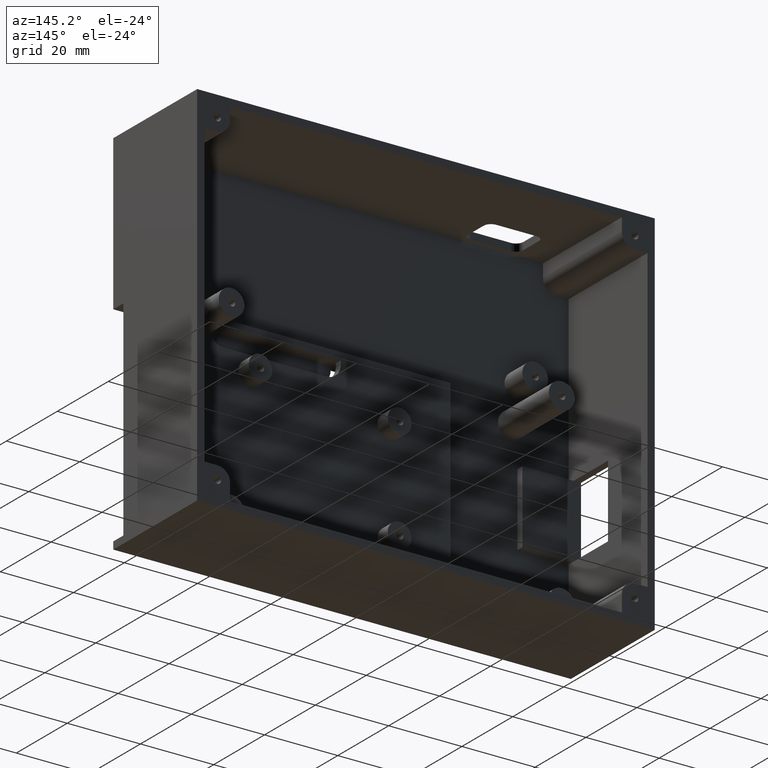
[diagram: clean part render]
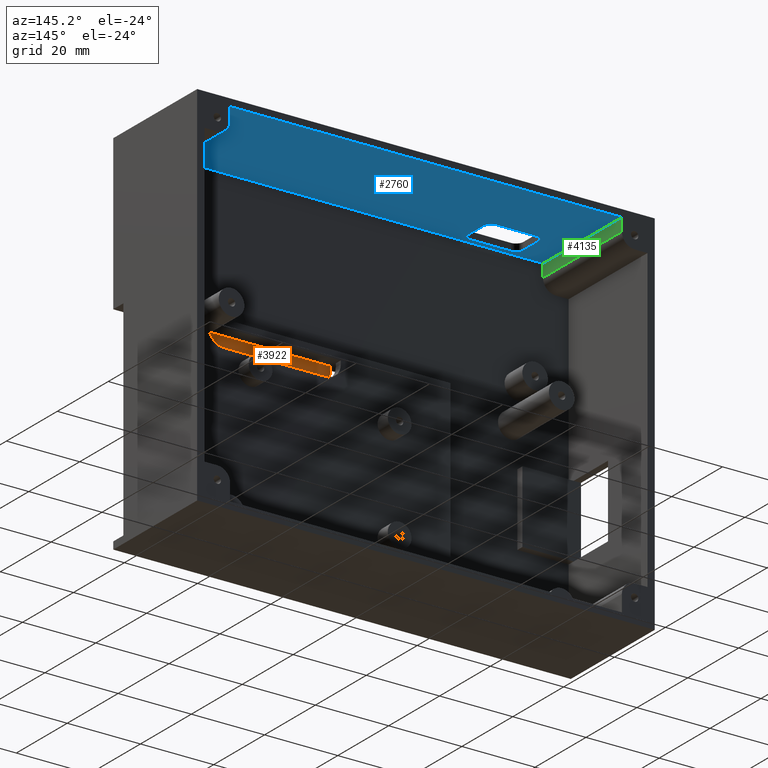
[diagram: same view with three faces highlighted in distinct colors, each labeled with its STEP entity id]
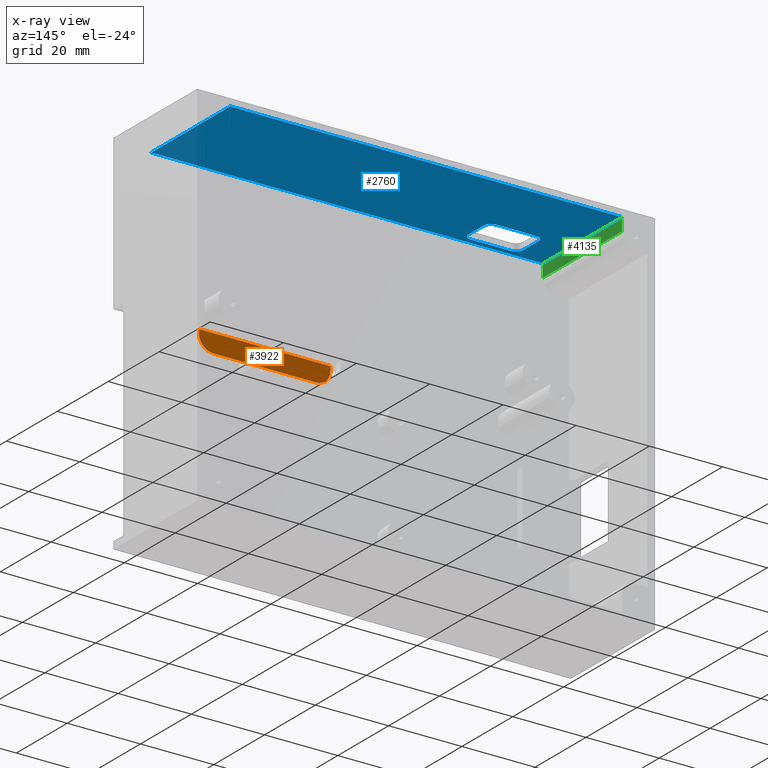
[diagram: x-ray of the same camera — body ghosted, the three highlighted faces saturated]
A machine part, auxiliary view with three faces highlighted in distinct colors.
The next image is the same camera in x-ray (body ghosted, the three faces saturated) — at least one of them is partly hidden behind the body in this view.
Their STEP definitions:

[orange] entity #3922 — the highlighted planar face has unit normal (0, 1, 0).
#4 = CARTESIAN_POINT ( 'NONE',  ( -14.97032640949552700, 2.000000000000000000, 14.74777448071218300 ) ) ;
#36 = VECTOR ( 'NONE', #3725, 1000.000000000000000 ) ;
#117 = CARTESIAN_POINT ( 'NONE',  ( 17.02967359050447300, 2.000000000000000000, 9.747774480712182700 ) ) ;
#363 = LINE ( 'NONE', #1131, #1828 ) ;
#457 = EDGE_CURVE ( 'NONE', #2579, #1004, #821, .T. ) ;
#489 = DIRECTION ( 'NONE',  ( -0.0000000000000000000, -1.000000000000000000, 0.0000000000000000000 ) ) ;
#491 = CIRCLE ( 'NONE', #1545, 4.000000000000001800 ) ;
#675 = VECTOR ( 'NONE', #930, 1000.000000000000000 ) ;
#821 = CIRCLE ( 'NONE', #2222, 3.999999999999998200 ) ;
#930 = DIRECTION ( 'NONE',  ( 1.000000000000000000, 0.0000000000000000000, 6.195440985631455300E-017 ) ) ;
#1003 = VERTEX_POINT ( 'NONE', #117 ) ;
#1004 = VERTEX_POINT ( 'NONE', #3218 ) ;
#1125 = ORIENTED_EDGE ( 'NONE', *, *, #4304, .T. ) ;
#1131 = CARTESIAN_POINT ( 'NONE',  ( -14.97032640949547600, 2.000000000000000000, -5.193875333117464500E-014 ) ) ;
#1182 = PLANE ( 'NONE',  #2083 ) ;
#1198 = DIRECTION ( 'NONE',  ( 0.0000000000000000000, -0.0000000000000000000, 1.000000000000000000 ) ) ;
#1486 = VECTOR ( 'NONE', #3456, 1000.000000000000000 ) ;
#1545 = AXIS2_PLACEMENT_3D ( 'NONE', #4172, #2104, #1744 ) ;
#1654 = ORIENTED_EDGE ( 'NONE', *, *, #2550, .F. ) ;
#1719 = ORIENTED_EDGE ( 'NONE', *, *, #4383, .T. ) ;
#1744 = DIRECTION ( 'NONE',  ( 0.0000000000000000000, 0.0000000000000000000, 1.000000000000000000 ) ) ;
#1828 = VECTOR ( 'NONE', #3531, 1000.000000000000000 ) ;
#1859 = CARTESIAN_POINT ( 'NONE',  ( -10.97032640949552400, 2.000000000000000000, 13.74777448071218100 ) ) ;
#1867 = LINE ( 'NONE', #2735, #36 ) ;
#2022 = EDGE_CURVE ( 'NONE', #1004, #1003, #4002, .T. ) ;
#2083 = AXIS2_PLACEMENT_3D ( 'NONE', #2927, #4287, #1198 ) ;
#2104 = DIRECTION ( 'NONE',  ( 0.0000000000000000000, 1.000000000000000000, -0.0000000000000000000 ) ) ;
#2222 = AXIS2_PLACEMENT_3D ( 'NONE', #1859, #489, #2888 ) ;
#2265 = FACE_OUTER_BOUND ( 'NONE', #3411, .T. ) ;
#2292 = CARTESIAN_POINT ( 'NONE',  ( -6.039176153649662000E-016, 2.000000000000000000, 9.747774480712180900 ) ) ;
#2550 = EDGE_CURVE ( 'NONE', #3726, #3831, #1867, .T. ) ;
#2579 = VERTEX_POINT ( 'NONE', #4075 ) ;
#2622 = VERTEX_POINT ( 'NONE', #4439 ) ;
#2735 = CARTESIAN_POINT ( 'NONE',  ( -42.97032640949553400, 2.000000000000000000, 14.74777448071218400 ) ) ;
#2820 = ORIENTED_EDGE ( 'NONE', *, *, #457, .F. ) ;
#2888 = DIRECTION ( 'NONE',  ( 0.0000000000000000000, 0.0000000000000000000, 1.000000000000000000 ) ) ;
#2927 = CARTESIAN_POINT ( 'NONE',  ( 0.0000000000000000000, 2.000000000000000000, 0.0000000000000000000 ) ) ;
#2937 = LINE ( 'NONE', #3800, #1486 ) ;
#2999 = CARTESIAN_POINT ( 'NONE',  ( 21.02967359050447300, 2.000000000000000000, 14.74777448071217900 ) ) ;
#3073 = ORIENTED_EDGE ( 'NONE', *, *, #3836, .F. ) ;
#3218 = CARTESIAN_POINT ( 'NONE',  ( -10.97032640949552400, 2.000000000000000000, 9.747774480712180900 ) ) ;
#3411 = EDGE_LOOP ( 'NONE', ( #1654, #1125, #1719, #4423, #2820, #3073 ) ) ;
#3456 = DIRECTION ( 'NONE',  ( 3.469446951953605500E-015, 0.0000000000000000000, -1.000000000000000000 ) ) ;
#3531 = DIRECTION ( 'NONE',  ( 3.469446951953605500E-015, 0.0000000000000000000, -1.000000000000000000 ) ) ;
#3725 = DIRECTION ( 'NONE',  ( -1.000000000000000000, -0.0000000000000000000, 8.260587980841938800E-017 ) ) ;
#3726 = VERTEX_POINT ( 'NONE', #2999 ) ;
#3800 = CARTESIAN_POINT ( 'NONE',  ( 21.02967359050452600, 2.000000000000000000, 7.296133693915516300E-014 ) ) ;
#3831 = VERTEX_POINT ( 'NONE', #4 ) ;
#3836 = EDGE_CURVE ( 'NONE', #3831, #2579, #363, .T. ) ;
#3922 = ADVANCED_FACE ( 'NONE', ( #2265 ), #1182, .T. ) ;
#4002 = LINE ( 'NONE', #2292, #675 ) ;
#4075 = CARTESIAN_POINT ( 'NONE',  ( -14.97032640949552400, 2.000000000000000000, 13.74777448071218100 ) ) ;
#4172 = CARTESIAN_POINT ( 'NONE',  ( 17.02967359050447300, 2.000000000000000000, 13.74777448071218100 ) ) ;
#4287 = DIRECTION ( 'NONE',  ( 0.0000000000000000000, 1.000000000000000000, 0.0000000000000000000 ) ) ;
#4304 = EDGE_CURVE ( 'NONE', #3726, #2622, #2937, .T. ) ;
#4383 = EDGE_CURVE ( 'NONE', #2622, #1003, #491, .T. ) ;
#4423 = ORIENTED_EDGE ( 'NONE', *, *, #2022, .F. ) ;
#4439 = CARTESIAN_POINT ( 'NONE',  ( 21.02967359050447600, 2.000000000000000000, 13.74777448071218100 ) ) ;

[blue] entity #2760 — the highlighted planar face has unit normal (-0, 0, 1).
#46 = DIRECTION ( 'NONE',  ( -0.0000000000000000000, 0.0000000000000000000, 1.000000000000000000 ) ) ;
#69 = ORIENTED_EDGE ( 'NONE', *, *, #1489, .F. ) ;
#151 = VERTEX_POINT ( 'NONE', #2423 ) ;
#161 = FACE_OUTER_BOUND ( 'NONE', #1014, .T. ) ;
#171 = VERTEX_POINT ( 'NONE', #1725 ) ;
#203 = VERTEX_POINT ( 'NONE', #1370 ) ;
#252 = LINE ( 'NONE', #2581, #3335 ) ;
#266 = CIRCLE ( 'NONE', #967, 2.000000000000001800 ) ;
#403 = DIRECTION ( 'NONE',  ( -1.000000000000000000, 0.0000000000000000000, 0.0000000000000000000 ) ) ;
#418 = LINE ( 'NONE', #1915, #3961 ) ;
#477 = DIRECTION ( 'NONE',  ( -0.0000000000000000000, -1.000000000000000000, -0.0000000000000000000 ) ) ;
#495 = CARTESIAN_POINT ( 'NONE',  ( -52.17032640949553700, 11.50000000000000400, 54.74777448071218100 ) ) ;
#593 = CARTESIAN_POINT ( 'NONE',  ( 34.02967359050447300, 33.00000000000000000, 54.74777448071218100 ) ) ;
#596 = CARTESIAN_POINT ( 'NONE',  ( -52.17032640949553700, 5.500000000000000900, 54.74777448071218100 ) ) ;
#670 = EDGE_CURVE ( 'NONE', #927, #151, #2600, .T. ) ;
#672 = EDGE_CURVE ( 'NONE', #1730, #2257, #1848, .T. ) ;
#759 = CIRCLE ( 'NONE', #2589, 2.000000000000001800 ) ;
#768 = EDGE_CURVE ( 'NONE', #171, #203, #759, .T. ) ;
#778 = DIRECTION ( 'NONE',  ( 0.0000000000000000000, 1.000000000000000000, 0.0000000000000000000 ) ) ;
#817 = VECTOR ( 'NONE', #4078, 1000.000000000000000 ) ;
#842 = DIRECTION ( 'NONE',  ( -1.000000000000000000, 0.0000000000000000000, -0.0000000000000000000 ) ) ;
#903 = ORIENTED_EDGE ( 'NONE', *, *, #2314, .F. ) ;
#927 = VERTEX_POINT ( 'NONE', #2434 ) ;
#949 = EDGE_CURVE ( 'NONE', #3686, #171, #2109, .T. ) ;
#967 = AXIS2_PLACEMENT_3D ( 'NONE', #495, #3589, #3628 ) ;
#1014 = EDGE_LOOP ( 'NONE', ( #1620, #3630, #69, #3906 ) ) ;
#1019 = CARTESIAN_POINT ( 'NONE',  ( 34.02967359050447300, 33.00000000000000000, 54.74777448071218100 ) ) ;
#1061 = EDGE_CURVE ( 'NONE', #3257, #927, #266, .T. ) ;
#1309 = DIRECTION ( 'NONE',  ( 0.0000000000000000000, -0.0000000000000000000, -1.000000000000000000 ) ) ;
#1321 = ORIENTED_EDGE ( 'NONE', *, *, #768, .F. ) ;
#1348 = VERTEX_POINT ( 'NONE', #1669 ) ;
#1351 = CARTESIAN_POINT ( 'NONE',  ( -50.17032640949553700, 11.50000000000000400, 54.74777448071218100 ) ) ;
#1370 = CARTESIAN_POINT ( 'NONE',  ( -63.17032640949553000, 13.50000000000000200, 54.74777448071218100 ) ) ;
#1409 = PLANE ( 'NONE',  #4325 ) ;
#1414 = FACE_BOUND ( 'NONE', #2835, .T. ) ;
#1480 = EDGE_CURVE ( 'NONE', #203, #3257, #252, .T. ) ;
#1489 = EDGE_CURVE ( 'NONE', #1696, #3329, #3499, .T. ) ;
#1620 = ORIENTED_EDGE ( 'NONE', *, *, #672, .T. ) ;
#1623 = CARTESIAN_POINT ( 'NONE',  ( -63.17032640949553000, 5.500000000000000000, 54.74777448071218100 ) ) ;
#1669 = CARTESIAN_POINT ( 'NONE',  ( -52.17032640949553700, 3.500000000000000400, 54.74777448071218100 ) ) ;
#1671 = VECTOR ( 'NONE', #477, 1000.000000000000000 ) ;
#1696 = VERTEX_POINT ( 'NONE', #3001 ) ;
#1725 = CARTESIAN_POINT ( 'NONE',  ( -65.17032640949553000, 11.50000000000000400, 54.74777448071218100 ) ) ;
#1730 = VERTEX_POINT ( 'NONE', #1019 ) ;
#1848 = LINE ( 'NONE', #593, #817 ) ;
#1908 = CARTESIAN_POINT ( 'NONE',  ( -72.97032640949552700, 33.00000000000000000, 54.74777448071218100 ) ) ;
#1915 = CARTESIAN_POINT ( 'NONE',  ( -79.97032640949552700, 2.000000000000000000, 54.74777448071218100 ) ) ;
#1991 = ORIENTED_EDGE ( 'NONE', *, *, #949, .F. ) ;
#2061 = AXIS2_PLACEMENT_3D ( 'NONE', #596, #1309, #2358 ) ;
#2109 = LINE ( 'NONE', #2850, #3702 ) ;
#2117 = ORIENTED_EDGE ( 'NONE', *, *, #670, .F. ) ;
#2257 = VERTEX_POINT ( 'NONE', #3783 ) ;
#2263 = CARTESIAN_POINT ( 'NONE',  ( -65.17032640949553000, 5.500000000000000000, 54.74777448071218100 ) ) ;
#2314 = EDGE_CURVE ( 'NONE', #1348, #3211, #4165, .T. ) ;
#2358 = DIRECTION ( 'NONE',  ( 1.000000000000000000, 0.0000000000000000000, 0.0000000000000000000 ) ) ;
#2385 = DIRECTION ( 'NONE',  ( 1.000000000000000000, 0.0000000000000000000, 0.0000000000000000000 ) ) ;
#2423 = CARTESIAN_POINT ( 'NONE',  ( -50.17032640949553700, 5.500000000000000900, 54.74777448071218100 ) ) ;
#2434 = CARTESIAN_POINT ( 'NONE',  ( -50.17032640949553700, 11.50000000000001100, 54.74777448071218100 ) ) ;
#2581 = CARTESIAN_POINT ( 'NONE',  ( -63.17032640949553000, 13.50000000000000200, 54.74777448071218100 ) ) ;
#2589 = AXIS2_PLACEMENT_3D ( 'NONE', #2722, #2666, #2385 ) ;
#2600 = LINE ( 'NONE', #1351, #3972 ) ;
#2666 = DIRECTION ( 'NONE',  ( 0.0000000000000000000, -0.0000000000000000000, -1.000000000000000000 ) ) ;
#2673 = DIRECTION ( 'NONE',  ( 0.0000000000000000000, -0.0000000000000000000, -1.000000000000000000 ) ) ;
#2722 = CARTESIAN_POINT ( 'NONE',  ( -63.17032640949553000, 11.50000000000000400, 54.74777448071218100 ) ) ;
#2724 = CARTESIAN_POINT ( 'NONE',  ( -52.17032640949553700, 13.50000000000000400, 54.74777448071218100 ) ) ;
#2760 = ADVANCED_FACE ( 'NONE', ( #1414, #161 ), #1409, .F. ) ;
#2835 = EDGE_LOOP ( 'NONE', ( #903, #4097, #2117, #3658, #3789, #1321, #1991, #4150 ) ) ;
#2850 = CARTESIAN_POINT ( 'NONE',  ( -65.17032640949553000, 11.50000000000000400, 54.74777448071218100 ) ) ;
#2998 = EDGE_CURVE ( 'NONE', #3329, #2257, #418, .T. ) ;
#3001 = CARTESIAN_POINT ( 'NONE',  ( -72.97032640949552700, 33.00000000000000000, 54.74777448071218100 ) ) ;
#3021 = CARTESIAN_POINT ( 'NONE',  ( -63.17032640949553000, 3.499999999999999100, 54.74777448071218100 ) ) ;
#3076 = LINE ( 'NONE', #3883, #4080 ) ;
#3121 = EDGE_CURVE ( 'NONE', #3211, #3686, #3495, .T. ) ;
#3211 = VERTEX_POINT ( 'NONE', #3021 ) ;
#3257 = VERTEX_POINT ( 'NONE', #2724 ) ;
#3267 = DIRECTION ( 'NONE',  ( 1.000000000000000000, 0.0000000000000000000, 0.0000000000000000000 ) ) ;
#3291 = EDGE_CURVE ( 'NONE', #151, #1348, #4309, .T. ) ;
#3329 = VERTEX_POINT ( 'NONE', #3431 ) ;
#3335 = VECTOR ( 'NONE', #3267, 1000.000000000000000 ) ;
#3431 = CARTESIAN_POINT ( 'NONE',  ( -72.97032640949552700, 2.000000000000000000, 54.74777448071218100 ) ) ;
#3495 = CIRCLE ( 'NONE', #4300, 2.000000000000001800 ) ;
#3499 = LINE ( 'NONE', #1908, #1671 ) ;
#3566 = EDGE_CURVE ( 'NONE', #1730, #1696, #3076, .T. ) ;
#3589 = DIRECTION ( 'NONE',  ( 0.0000000000000000000, -0.0000000000000000000, -1.000000000000000000 ) ) ;
#3628 = DIRECTION ( 'NONE',  ( 1.000000000000000000, -1.040834085586083300E-014, 0.0000000000000000000 ) ) ;
#3630 = ORIENTED_EDGE ( 'NONE', *, *, #2998, .F. ) ;
#3658 = ORIENTED_EDGE ( 'NONE', *, *, #1061, .F. ) ;
#3686 = VERTEX_POINT ( 'NONE', #2263 ) ;
#3692 = DIRECTION ( 'NONE',  ( 1.000000000000000000, 0.0000000000000000000, 0.0000000000000000000 ) ) ;
#3702 = VECTOR ( 'NONE', #778, 1000.000000000000000 ) ;
#3783 = CARTESIAN_POINT ( 'NONE',  ( 34.02967359050447300, 2.000000000000000000, 54.74777448071218100 ) ) ;
#3789 = ORIENTED_EDGE ( 'NONE', *, *, #1480, .F. ) ;
#3790 = VECTOR ( 'NONE', #403, 1000.000000000000000 ) ;
#3883 = CARTESIAN_POINT ( 'NONE',  ( -79.97032640949552700, 33.00000000000000000, 54.74777448071218100 ) ) ;
#3906 = ORIENTED_EDGE ( 'NONE', *, *, #3566, .F. ) ;
#3930 = DIRECTION ( 'NONE',  ( 1.000000000000000000, 0.0000000000000000000, 0.0000000000000000000 ) ) ;
#3961 = VECTOR ( 'NONE', #3930, 1000.000000000000000 ) ;
#3972 = VECTOR ( 'NONE', #4060, 1000.000000000000000 ) ;
#4060 = DIRECTION ( 'NONE',  ( 0.0000000000000000000, -1.000000000000000000, 0.0000000000000000000 ) ) ;
#4078 = DIRECTION ( 'NONE',  ( -0.0000000000000000000, -1.000000000000000000, -0.0000000000000000000 ) ) ;
#4080 = VECTOR ( 'NONE', #842, 1000.000000000000000 ) ;
#4097 = ORIENTED_EDGE ( 'NONE', *, *, #3291, .F. ) ;
#4108 = DIRECTION ( 'NONE',  ( 1.000000000000000000, 0.0000000000000000000, 0.0000000000000000000 ) ) ;
#4137 = CARTESIAN_POINT ( 'NONE',  ( -79.97032640949552700, 193.7046981267193600, 54.74777448071218100 ) ) ;
#4150 = ORIENTED_EDGE ( 'NONE', *, *, #3121, .F. ) ;
#4165 = LINE ( 'NONE', #4223, #3790 ) ;
#4223 = CARTESIAN_POINT ( 'NONE',  ( -63.17032640949553000, 3.500000000000000400, 54.74777448071218100 ) ) ;
#4300 = AXIS2_PLACEMENT_3D ( 'NONE', #1623, #2673, #3692 ) ;
#4309 = CIRCLE ( 'NONE', #2061, 2.000000000000001800 ) ;
#4325 = AXIS2_PLACEMENT_3D ( 'NONE', #4137, #46, #4108 ) ;

[green] entity #4135 — the highlighted planar face has unit normal (-1, 0, 0).
#283 = DIRECTION ( 'NONE',  ( 0.0000000000000000000, 0.0000000000000000000, 1.000000000000000000 ) ) ;
#440 = ORIENTED_EDGE ( 'NONE', *, *, #4130, .F. ) ;
#477 = DIRECTION ( 'NONE',  ( -0.0000000000000000000, -1.000000000000000000, -0.0000000000000000000 ) ) ;
#580 = VECTOR ( 'NONE', #658, 1000.000000000000000 ) ;
#606 = DIRECTION ( 'NONE',  ( -0.0000000000000000000, -1.000000000000000000, -0.0000000000000000000 ) ) ;
#623 = CARTESIAN_POINT ( 'NONE',  ( -72.97032640949552700, 33.00000000000000000, 51.24777448071217400 ) ) ;
#654 = ORIENTED_EDGE ( 'NONE', *, *, #1489, .T. ) ;
#658 = DIRECTION ( 'NONE',  ( -0.0000000000000000000, -0.0000000000000000000, -1.000000000000000000 ) ) ;
#659 = VERTEX_POINT ( 'NONE', #917 ) ;
#917 = CARTESIAN_POINT ( 'NONE',  ( -72.97032640949552700, 2.000000000000000000, 51.24777448071217400 ) ) ;
#1374 = DIRECTION ( 'NONE',  ( -1.000000000000000000, 0.0000000000000000000, 0.0000000000000000000 ) ) ;
#1489 = EDGE_CURVE ( 'NONE', #1696, #3329, #3499, .T. ) ;
#1590 = FACE_OUTER_BOUND ( 'NONE', #2074, .T. ) ;
#1607 = CARTESIAN_POINT ( 'NONE',  ( -72.97032640949552700, 33.00000000000000000, 51.24777448071217400 ) ) ;
#1671 = VECTOR ( 'NONE', #477, 1000.000000000000000 ) ;
#1696 = VERTEX_POINT ( 'NONE', #3001 ) ;
#1908 = CARTESIAN_POINT ( 'NONE',  ( -72.97032640949552700, 33.00000000000000000, 54.74777448071218100 ) ) ;
#2074 = EDGE_LOOP ( 'NONE', ( #2515, #2678, #440, #654 ) ) ;
#2183 = VECTOR ( 'NONE', #4356, 1000.000000000000000 ) ;
#2319 = AXIS2_PLACEMENT_3D ( 'NONE', #623, #1374, #283 ) ;
#2349 = PLANE ( 'NONE',  #2319 ) ;
#2404 = LINE ( 'NONE', #1607, #2183 ) ;
#2515 = ORIENTED_EDGE ( 'NONE', *, *, #2773, .T. ) ;
#2540 = LINE ( 'NONE', #3426, #580 ) ;
#2678 = ORIENTED_EDGE ( 'NONE', *, *, #4246, .F. ) ;
#2773 = EDGE_CURVE ( 'NONE', #3329, #659, #2540, .T. ) ;
#3001 = CARTESIAN_POINT ( 'NONE',  ( -72.97032640949552700, 33.00000000000000000, 54.74777448071218100 ) ) ;
#3097 = VECTOR ( 'NONE', #606, 1000.000000000000000 ) ;
#3329 = VERTEX_POINT ( 'NONE', #3431 ) ;
#3400 = CARTESIAN_POINT ( 'NONE',  ( -72.97032640949552700, 33.00000000000000000, 51.24777448071217400 ) ) ;
#3426 = CARTESIAN_POINT ( 'NONE',  ( -72.97032640949552700, 2.000000000000000000, 51.24777448071217400 ) ) ;
#3431 = CARTESIAN_POINT ( 'NONE',  ( -72.97032640949552700, 2.000000000000000000, 54.74777448071218100 ) ) ;
#3499 = LINE ( 'NONE', #1908, #1671 ) ;
#4130 = EDGE_CURVE ( 'NONE', #1696, #4222, #2404, .T. ) ;
#4135 = ADVANCED_FACE ( 'NONE', ( #1590 ), #2349, .F. ) ;
#4222 = VERTEX_POINT ( 'NONE', #4454 ) ;
#4246 = EDGE_CURVE ( 'NONE', #4222, #659, #4317, .T. ) ;
#4317 = LINE ( 'NONE', #3400, #3097 ) ;
#4356 = DIRECTION ( 'NONE',  ( -0.0000000000000000000, -0.0000000000000000000, -1.000000000000000000 ) ) ;
#4454 = CARTESIAN_POINT ( 'NONE',  ( -72.97032640949552700, 33.00000000000000000, 51.24777448071217400 ) ) ;